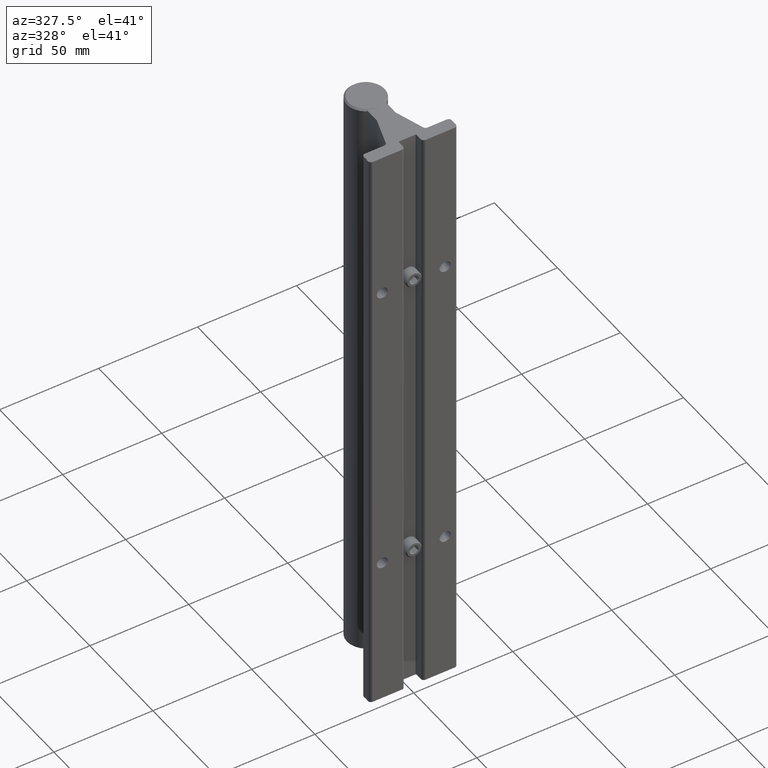
[diagram: clean part render]
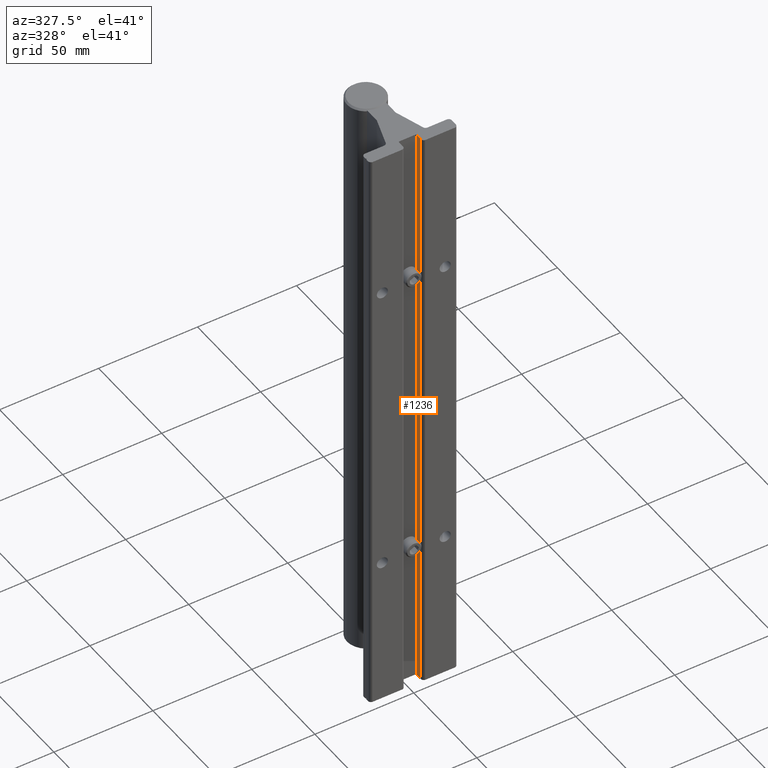
[diagram: same view with one face highlighted and labeled with its STEP entity id]
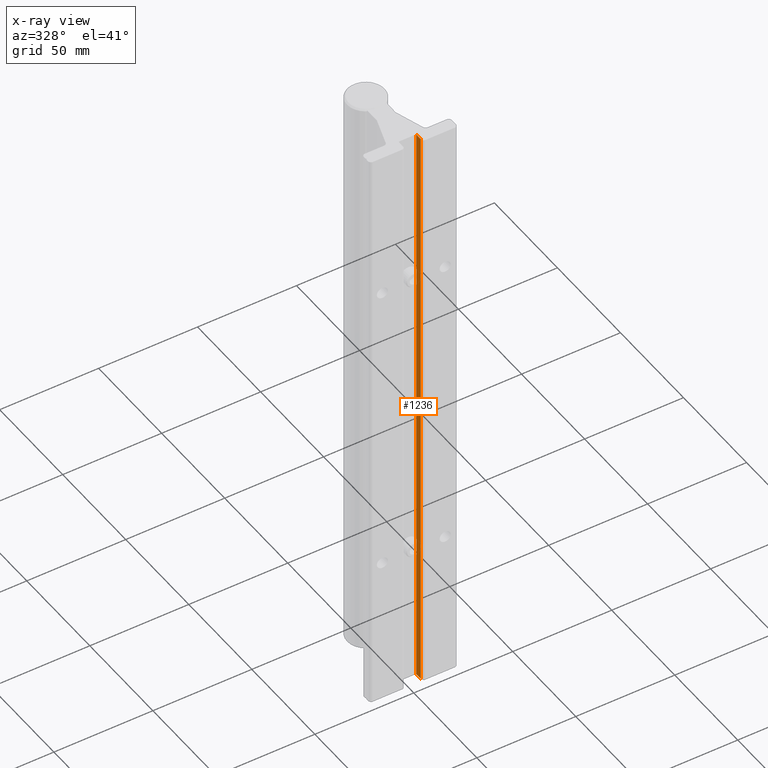
[diagram: x-ray of the same camera — body ghosted, the highlighted face saturated]
A machine part, auxiliary view. The second image highlights one B-rep face of the part: STEP entity #1236.
The next image is the same camera in x-ray: the body ghosted, the highlighted face saturated — about 0% of this face is hidden behind the body in this view.
In plain terms, the highlighted planar face has unit normal (-1, -0, 0).
Its self-contained STEP definition (entity closure, byte-faithful):
#97 = DIRECTION ( 'NONE',  ( 0.0000000000000000000, 0.0000000000000000000, 1.000000000000000000 ) ) ;
#186 = VERTEX_POINT ( 'NONE', #2383 ) ;
#276 = CARTESIAN_POINT ( 'NONE',  ( 0.1749999999999989619, 0.06000000000000004635, 0.0000000000000000000 ) ) ;
#373 = VECTOR ( 'NONE', #1328, 39.37007874015748143 ) ;
#446 = CARTESIAN_POINT ( 'NONE',  ( 0.1749999999999985456, 0.1900000000000000300, -14.10463218188033174 ) ) ;
#616 = CARTESIAN_POINT ( 'NONE',  ( 0.1749999999999989619, 0.06000000000000006023, -12.00000000000000178 ) ) ;
#633 = LINE ( 'NONE', #3577, #1813 ) ;
#757 = EDGE_CURVE ( 'NONE', #2279, #186, #633, .T. ) ;
#767 = DIRECTION ( 'NONE',  ( -1.000000000000000000, -3.152132300381842388E-15, 0.0000000000000000000 ) ) ;
#959 = LINE ( 'NONE', #3410, #4020 ) ;
#1090 = DIRECTION ( 'NONE',  ( 3.152132300381842388E-15, -1.000000000000000000, 0.0000000000000000000 ) ) ;
#1236 = ADVANCED_FACE ( 'NONE', ( #3495 ), #1381, .T. ) ;
#1328 = DIRECTION ( 'NONE',  ( 3.152132300381842388E-15, -1.000000000000000000, 0.0000000000000000000 ) ) ;
#1381 = PLANE ( 'NONE',  #2061 ) ;
#1671 = CARTESIAN_POINT ( 'NONE',  ( 0.1749999999999985456, 0.1900000000000000300, 0.0000000000000000000 ) ) ;
#1813 = VECTOR ( 'NONE', #3805, 39.37007874015748143 ) ;
#1873 = EDGE_CURVE ( 'NONE', #186, #2465, #2333, .T. ) ;
#1971 = CARTESIAN_POINT ( 'NONE',  ( 0.1749999999999984623, 0.1900000000000000300, -14.10463218188033174 ) ) ;
#2004 = LINE ( 'NONE', #1671, #373 ) ;
#2061 = AXIS2_PLACEMENT_3D ( 'NONE', #446, #767, #1090 ) ;
#2225 = ORIENTED_EDGE ( 'NONE', *, *, #2372, .T. ) ;
#2279 = VERTEX_POINT ( 'NONE', #616 ) ;
#2333 = LINE ( 'NONE', #1971, #3785 ) ;
#2372 = EDGE_CURVE ( 'NONE', #2279, #4002, #959, .T. ) ;
#2383 = CARTESIAN_POINT ( 'NONE',  ( 0.1749999999999984623, 0.1900000000000000300, -12.00000000000000178 ) ) ;
#2465 = VERTEX_POINT ( 'NONE', #3311 ) ;
#2821 = DIRECTION ( 'NONE',  ( 0.0000000000000000000, 0.0000000000000000000, 1.000000000000000000 ) ) ;
#2837 = EDGE_LOOP ( 'NONE', ( #2887, #2225, #2899, #3815 ) ) ;
#2887 = ORIENTED_EDGE ( 'NONE', *, *, #757, .F. ) ;
#2899 = ORIENTED_EDGE ( 'NONE', *, *, #3653, .F. ) ;
#3311 = CARTESIAN_POINT ( 'NONE',  ( 0.1749999999999984623, 0.1900000000000000300, 0.0000000000000000000 ) ) ;
#3410 = CARTESIAN_POINT ( 'NONE',  ( 0.1749999999999989619, 0.06000000000000004635, -14.10463218188033174 ) ) ;
#3495 = FACE_OUTER_BOUND ( 'NONE', #2837, .T. ) ;
#3577 = CARTESIAN_POINT ( 'NONE',  ( 0.1749999999999985456, 0.1900000000000000300, -12.00000000000000178 ) ) ;
#3653 = EDGE_CURVE ( 'NONE', #2465, #4002, #2004, .T. ) ;
#3785 = VECTOR ( 'NONE', #97, 39.37007874015748143 ) ;
#3805 = DIRECTION ( 'NONE',  ( -3.152132300381842388E-15, 1.000000000000000000, 0.0000000000000000000 ) ) ;
#3815 = ORIENTED_EDGE ( 'NONE', *, *, #1873, .F. ) ;
#4002 = VERTEX_POINT ( 'NONE', #276 ) ;
#4020 = VECTOR ( 'NONE', #2821, 39.37007874015748143 ) ;